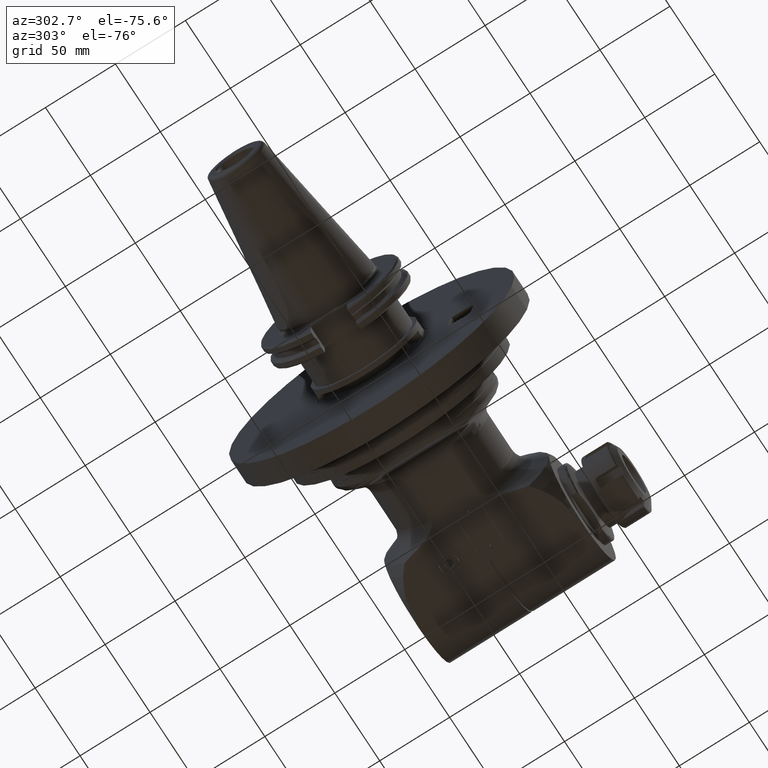
[diagram: clean part render]
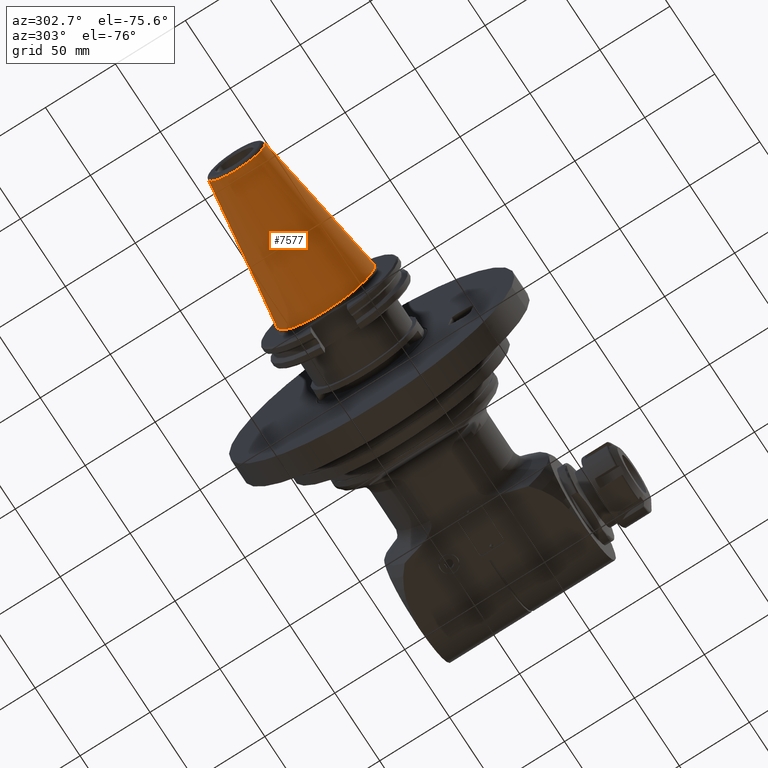
[diagram: same view with one face highlighted and labeled with its STEP entity id]
A machine part, auxiliary view. The second image highlights one B-rep face of the part: STEP entity #7577.
In plain terms, the highlighted conical surface has half-angle 8.297 deg.
Its self-contained STEP definition (entity closure, byte-faithful):
#348=CONICAL_SURFACE('',#8084,27.67265681028,0.144812411498922);
#435=FACE_OUTER_BOUND('',#839,.T.);
#839=EDGE_LOOP('',(#5138,#5139,#5140,#5141,#5142,#5143));
#1339=CIRCLE('',#8082,34.925);
#1340=CIRCLE('',#8083,34.925);
#1341=CIRCLE('',#8085,20.42031362057);
#1342=CIRCLE('',#8086,20.42031362057);
#1697=LINE('',#11183,#2306);
#2306=VECTOR('',#8959,27.67265681028);
#3055=VERTEX_POINT('',#11176);
#3056=VERTEX_POINT('',#11177);
#3057=VERTEX_POINT('',#11182);
#3058=VERTEX_POINT('',#11184);
#3922=EDGE_CURVE('',#3055,#3056,#1339,.T.);
#3924=EDGE_CURVE('',#3056,#3055,#1340,.T.);
#3925=EDGE_CURVE('',#3055,#3057,#1697,.T.);
#3926=EDGE_CURVE('',#3058,#3057,#1341,.T.);
#3927=EDGE_CURVE('',#3057,#3058,#1342,.T.);
#5138=ORIENTED_EDGE('',*,*,#3922,.F.);
#5139=ORIENTED_EDGE('',*,*,#3925,.T.);
#5140=ORIENTED_EDGE('',*,*,#3926,.F.);
#5141=ORIENTED_EDGE('',*,*,#3927,.F.);
#5142=ORIENTED_EDGE('',*,*,#3925,.F.);
#5143=ORIENTED_EDGE('',*,*,#3924,.F.);
#7577=ADVANCED_FACE('',(#435),#348,.T.);
#8082=AXIS2_PLACEMENT_3D('',#11178,#8952,#8953);
#8083=AXIS2_PLACEMENT_3D('',#11180,#8955,#8956);
#8084=AXIS2_PLACEMENT_3D('',#11181,#8957,#8958);
#8085=AXIS2_PLACEMENT_3D('',#11185,#8960,#8961);
#8086=AXIS2_PLACEMENT_3D('',#11186,#8962,#8963);
#8952=DIRECTION('center_axis',(1.,0.,0.));
#8953=DIRECTION('ref_axis',(0.,0.,-1.));
#8955=DIRECTION('center_axis',(1.,0.,0.));
#8956=DIRECTION('ref_axis',(0.,0.,-1.));
#8957=DIRECTION('center_axis',(1.,0.,0.));
#8958=DIRECTION('ref_axis',(0.,0.,-1.));
#8959=DIRECTION('',(-0.98953299358046,1.76724869581176E-17,-0.144306807239621));
#8960=DIRECTION('center_axis',(-1.,0.,0.));
#8961=DIRECTION('ref_axis',(0.,0.,-1.));
#8962=DIRECTION('center_axis',(-1.,0.,0.));
#8963=DIRECTION('ref_axis',(0.,0.,-1.));
#11176=CARTESIAN_POINT('',(9.947598300641E-14,0.,34.925));
#11177=CARTESIAN_POINT('',(3.99194566291783E-13,-4.27707894602227E-15,-34.9250000000012));
#11178=CARTESIAN_POINT('Origin',(8.526512829121E-14,0.,0.));
#11180=CARTESIAN_POINT('Origin',(8.526512829121E-14,0.,0.));
#11181=CARTESIAN_POINT('Origin',(-49.73038350905,0.,0.));
#11182=CARTESIAN_POINT('',(-99.4607670180991,-2.50076717130085E-15,20.4203136205638));
#11183=CARTESIAN_POINT('',(-49.73038350905,-3.38892305866126E-15,27.67265681028));
#11184=CARTESIAN_POINT('',(-99.4607670181,20.42031362057,2.50076717130162E-15));
#11185=CARTESIAN_POINT('Origin',(-99.4607670181,0.,0.));
#11186=CARTESIAN_POINT('Origin',(-99.4607670181,0.,0.));